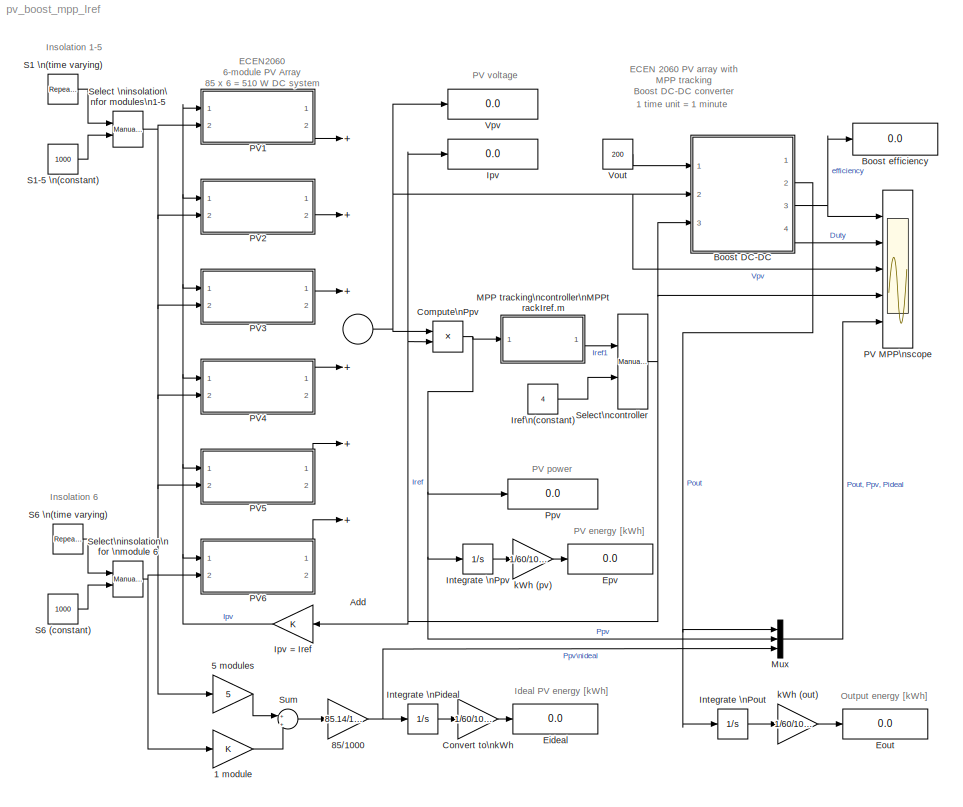
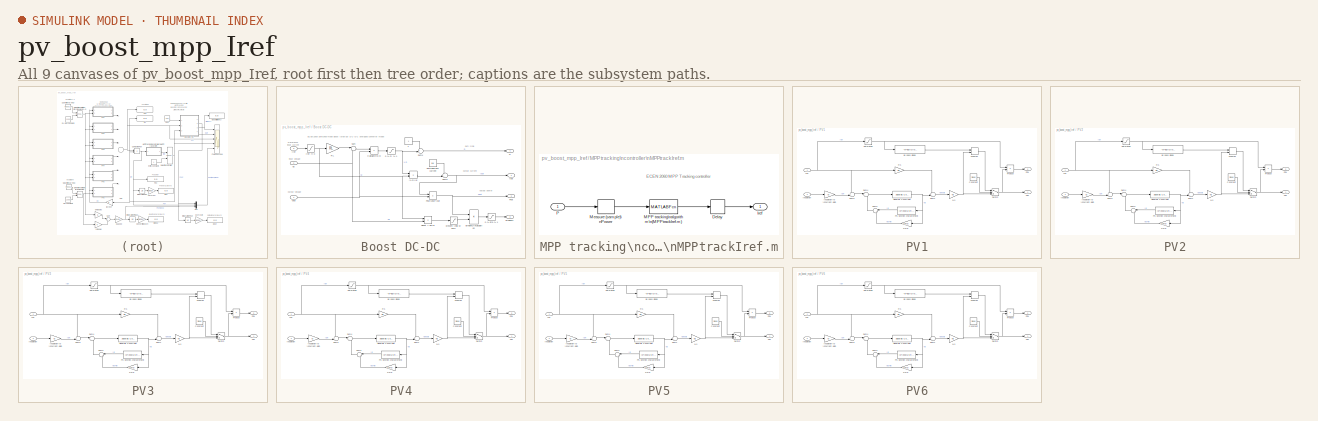
[diagram: thumbnail index - all 9 canvases of the model, root first then tree order]
MODEL pv_boost_mpp_Iref
KIND model
BLOCK [Gain] 1 module
  OutDataTypeMode = Inherit via internal rule
  ParameterDataTypeMode = Inherit via internal rule
  SaturateOnIntegerOverflow = off
BLOCK [Gain] 5 modules
  Gain = 5
  OutDataTypeMode = Inherit via internal rule
  ParameterDataTypeMode = Inherit via internal rule
  SaturateOnIntegerOverflow = off
BLOCK [Gain] 85//1000
  Gain = 85.14/1000
  OutDataTypeMode = Inherit via internal rule
  ParameterDataTypeMode = Inherit via internal rule
  SaturateOnIntegerOverflow = off
BLOCK [Sum] Add
  InputSameDT = off
  Inputs = ++++++
  OutDataTypeMode = Inherit via internal rule
  OutScaling = 2^-10
  Ports = [6, 1]
  SaturateOnIntegerOverflow = off
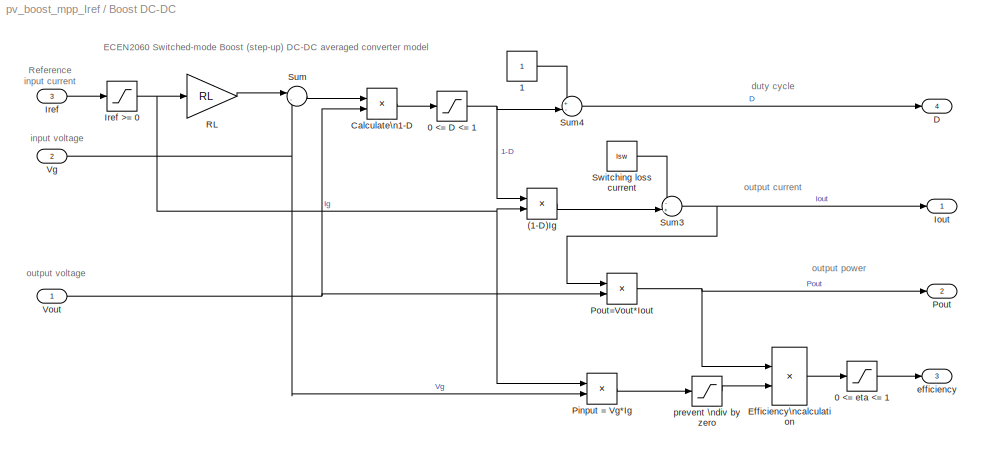
BLOCK [SubSystem] Boost DC-DC
  FunctionWithSeparateData = off
  MaskCallbackString = |
  MaskDescription = Averaged model of a boost (step-up) DC-DC converter with input current control. Model includes RL (conduction loss model) in series with the input port and Isw (model of switching and other loss) in parallel with the output port
  MaskDisplay = text(0.5,0.9,'Boost','horizontalAlignment', 'center');\ntext(0.5,0.8,'DC-DC','horizontalAlignment', 'center');\ntext(0.5,0.7,'(averaged)','horizontalAlignment', 'center');\ntext(0.5,0.6,'Iref control','horizontalAlignment', 'center');
  MaskEnableString = on,on
  MaskHideContents = off
  MaskIconFrame = on
  MaskIconOpaque = off
  MaskIconRotate = none
  MaskIconUnits = normalized
  MaskPromptString = Input port series resistance RL|Switching loss current Isw
  MaskStyleString = edit,edit
  MaskTabNameString = ,
  MaskToolTipString = on,on
  MaskTunableValueString = on,on
  MaskValueString = 0.5|0.03
  MaskVarAliasString = ,
  MaskVariables = RL=@1;Isw=@2;
  MaskVisibilityString = on,on
  MinAlgLoopOccurrences = off
  Ports = [3, 4]
  RTWSystemCode = Auto
BLOCK [Product] Boost DC-DC/(1-D)Ig
  InputSameDT = off
  Inputs = **
  OutDataTypeMode = Inherit via internal rule
  Ports = [2, 1]
  SaturateOnIntegerOverflow = off
BLOCK [Saturate] Boost DC-DC/0 <= D <= 1
  LowerLimit = 0
  UpperLimit = 1
BLOCK [Saturate] Boost DC-DC/0 <= eta <= 1
  LowerLimit = 0
  UpperLimit = 1
BLOCK [Constant] Boost DC-DC/1
  ConRadixGroup = Use specified scaling
  FramePeriod = inf
  OutDataType = sfix(16)
  OutDataTypeMode = Inherit from 'Constant value'
  OutScaling = 2^0
  SampleTime = inf
  SamplingMode = Sample based
  Value = 1
  VectorParams1D = on
BLOCK [Product] Boost DC-DC/Calculate\n1-D
  InputSameDT = off
  Inputs = */
  OutDataTypeMode = Inherit via internal rule
  Ports = [2, 1]
  SaturateOnIntegerOverflow = off
BLOCK [Outport] Boost DC-DC/D
  BusOutputAsStruct = off
  IconDisplay = Port number
  Port = 4
BLOCK [Product] Boost DC-DC/Efficiency\ncalculation
  InputSameDT = off
  Inputs = */
  OutDataTypeMode = Inherit via internal rule
  Ports = [2, 1]
  SaturateOnIntegerOverflow = off
BLOCK [Outport] Boost DC-DC/Iout
  BusOutputAsStruct = off
  IconDisplay = Port number
BLOCK [Inport] Boost DC-DC/Iref
  IconDisplay = Port number
  Port = 3
BLOCK [Saturate] Boost DC-DC/Iref >= 0
  LowerLimit = 0
  UpperLimit = inf
BLOCK [Product] Boost DC-DC/Pinput = Vg*Ig
  InputSameDT = off
  Inputs = **
  OutDataTypeMode = Inherit via internal rule
  Ports = [2, 1]
  SaturateOnIntegerOverflow = off
BLOCK [Outport] Boost DC-DC/Pout
  BusOutputAsStruct = off
  IconDisplay = Port number
  Port = 2
BLOCK [Product] Boost DC-DC/Pout=Vout*Iout
  InputSameDT = off
  Inputs = **
  OutDataTypeMode = Inherit via internal rule
  Ports = [2, 1]
  SaturateOnIntegerOverflow = off
BLOCK [Gain] Boost DC-DC/RL
  Gain = RL
  OutDataTypeMode = Inherit via internal rule
  ParameterDataTypeMode = Inherit via internal rule
  SaturateOnIntegerOverflow = off
BLOCK [Sum] Boost DC-DC/Sum
  IconShape = round
  InputSameDT = off
  Inputs = |-+
  OutDataTypeMode = Inherit via internal rule
  Ports = [2, 1]
  SaturateOnIntegerOverflow = off
BLOCK [Sum] Boost DC-DC/Sum3
  IconShape = round
  InputSameDT = off
  Inputs = -+|
  OutDataTypeMode = Inherit via internal rule
  Ports = [2, 1]
  SaturateOnIntegerOverflow = off
BLOCK [Sum] Boost DC-DC/Sum4
  IconShape = round
  InputSameDT = off
  Inputs = +-|
  OutDataTypeMode = Inherit via internal rule
  Ports = [2, 1]
  SaturateOnIntegerOverflow = off
BLOCK [Constant] Boost DC-DC/Switching loss current
  ConRadixGroup = Use specified scaling
  FramePeriod = inf
  OutDataType = sfix(16)
  OutDataTypeMode = Inherit from 'Constant value'
  OutScaling = 2^0
  SampleTime = inf
  SamplingMode = Sample based
  Value = Isw
  VectorParams1D = on
BLOCK [Inport] Boost DC-DC/Vg
  IconDisplay = Port number
  Port = 2
BLOCK [Inport] Boost DC-DC/Vout
  IconDisplay = Port number
BLOCK [Outport] Boost DC-DC/efficiency
  BusOutputAsStruct = off
  IconDisplay = Port number
  Port = 3
BLOCK [Saturate] Boost DC-DC/prevent \ndiv by zero
  LowerLimit = eps
  UpperLimit = inf
BLOCK [Display] Boost efficiency
  Decimation = 1
  Lockdown = off
  Ports = [1]
BLOCK [Product] Compute\nPpv
  InputSameDT = off
  OutDataTypeMode = Inherit via internal rule
  Ports = [2, 1]
  SaturateOnIntegerOverflow = off
BLOCK [Gain] Convert to\nkWh
  Gain = 1/60/1000
  OutDataTypeMode = Inherit via internal rule
  ParameterDataTypeMode = Inherit via internal rule
  SaturateOnIntegerOverflow = off
BLOCK [Display] Eideal
  Decimation = 1
  Lockdown = off
  Ports = [1]
BLOCK [Display] Eout
  Decimation = 1
  Lockdown = off
  Ports = [1]
BLOCK [Display] Epv
  Decimation = 1
  Lockdown = off
  Ports = [1]
BLOCK [Integrator] Integrate \nPideal
  IgnoreLimit = off
  Ports = [1, 1]
BLOCK [Integrator] Integrate \nPout
  IgnoreLimit = off
  Ports = [1, 1]
BLOCK [Integrator] Integrate \nPpv
  IgnoreLimit = off
  Ports = [1, 1]
BLOCK [Display] Ipv
  Decimation = 1
  Lockdown = off
  Ports = [1]
BLOCK [Gain] Ipv = Iref
  OutDataTypeMode = Inherit via internal rule
  ParameterDataTypeMode = Inherit via internal rule
  SaturateOnIntegerOverflow = off
BLOCK [Constant] Iref\n(constant)
  ConRadixGroup = Use specified scaling
  FramePeriod = inf
  OutDataType = sfix(16)
  OutDataTypeMode = Inherit from 'Constant value'
  OutScaling = 2^0
  SampleTime = inf
  SamplingMode = Sample based
  Value = 4
  VectorParams1D = on
BLOCK [SubSystem] MPP tracking\ncontroller\nMPPtrackIref.m
  FunctionWithSeparateData = off
  MaskDisplay = text(0.5,0.5,'MPPT','horizontalAlignment', 'center');
  MaskEnableString = on
  MaskHideContents = off
  MaskIconFrame = on
  MaskIconOpaque = off
  MaskIconRotate = none
  MaskIconUnits = normalized
  MaskInitialization = InitializeMPPtrackIref
  MaskPromptString = Sample interval
  MaskStyleString = edit
  MaskToolTipString = on
  MaskTunableValueString = on
  MaskValueString = 0.2
  MaskVariables = Tsample=@1;
  MaskVisibilityString = on
  MinAlgLoopOccurrences = off
  Ports = [1, 1]
  RTWSystemCode = Auto
BLOCK [TransportDelay] MPP tracking\ncontroller\nMPPtrackIref.m/Delay
  DelayTime = Tsample/2
BLOCK [Outport] MPP tracking\ncontroller\nMPPtrackIref.m/Iref
  BusOutputAsStruct = off
  IconDisplay = Port number
BLOCK [MATLABFcn] MPP tracking\ncontroller\nMPPtrackIref.m/MPP tracking\nalgorithm\n(MPPtrackIref.m)
  MATLABFcn = MPPtrackIref
BLOCK [ZeroOrderHold] MPP tracking\ncontroller\nMPPtrackIref.m/Measure (sample)\nPower
  SampleTime = Tsample
BLOCK [Inport] MPP tracking\ncontroller\nMPPtrackIref.m/P
  IconDisplay = Port number
BLOCK [Mux] Mux
  DisplayOption = bar
  Inputs = 3
  Ports = [3, 1]
BLOCK [Scope] PV MPP\nscope
  DataFormat = StructureWithTime
  Floating = off
  LimitDataPoints = off
  NumInputPorts = 5
  Ports = [5]
  SampleTime = 0
  SaveName = ScopeData1
  TimeRange = 500
  YMax = 1~1~150~6~1000
  YMin = 0~0.4~-50~0~-500
  ZoomMode = yonly
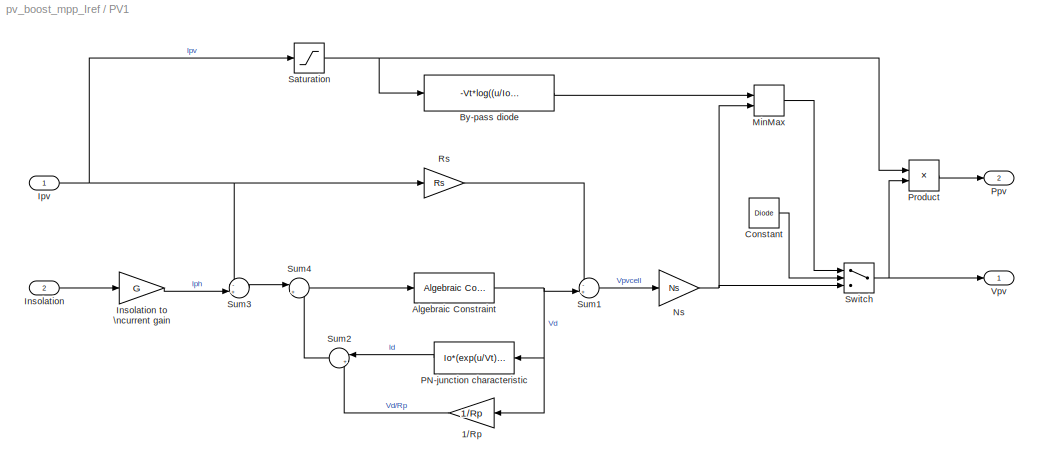
BLOCK [SubSystem] PV1
  FunctionWithSeparateData = off
  MaskCallbackString = ||||
  MaskDescription = PV module model based on module data-sheet parameters. This model has Ipv input, which is suitable for series connections. Limitations: no temperature dependance, static model
  MaskDisplay = plot([0.3 0.4],[0.4 0.8]);\nplot([0.4 0.5],[0.4 0.8]);\nplot([0.5 0.6],[0.4 0.8]);\nplot([0.6 0.7],[0.4 0.8]);\nplot([0.3 0.6],[0.4 0.4]);\nplot([0.325 0.625],[0.5 0.5]);\nplot([0.35 0.65],[0.6 0.6]);\nplot([0.375 0.675],[0.7 0.7]);\nplot([0.4 0.7],[0.8 0.8]);\ntext(0.5,0.9,'PV module (I)','horizontalAlignment', 'center');\n  <repeated x6 — deduplicated; at blocks: PV1, PV2, PV3, PV4, PV5, PV6>
  MaskEnableString = on,on,on,on,on
  MaskHideContents = off
  MaskIconFrame = on
  MaskIconOpaque = off
  MaskIconRotate = none
  MaskIconUnits = normalized
  MaskInitialization = % calculation of PV module parameters\n% limitation: constant temperature\nNs = round(Voc/0.61); % default number of cells in series\nVt = 26e-3; % thermal voltage\nG = Isc/1000; % irradiation to short-circuit current gain\nVmpc = Vr/Ns; % cell voltage at rated Pmax\nVocc = Voc/Ns; % cell open-circuit voltage\nRmpp = Vmpc/Ir; % cell load resistance at Pmax\n%\nRp = 100*Vocc/Isc; % initial value fo...<+575ch>  <repeated x6 — deduplicated; at blocks: PV1, PV2, PV3, PV4, PV5, PV6>
  MaskPromptString = Short-circuit current|Open-circuit voltage|Current at Pmax|Voltage at Pmax|By-pass diode?
  MaskStyleString = edit,edit,edit,edit,checkbox
  MaskTabNameString = ,,,,
  MaskToolTipString = on,on,on,on,on
  MaskTunableValueString = on,on,on,on,on
  MaskValueString = 5.45|22.2|4.95|17.2|on
  MaskVarAliasString = ,,,,
  MaskVariables = Isc=@1;Voc=@2;Ir=@3;Vr=@4;Diode=@5;
  MaskVisibilityString = on,on,on,on,on
  MinAlgLoopOccurrences = off
  Ports = [2, 2]
  RTWSystemCode = Auto
BLOCK [Gain] PV1/1//Rp
  Gain = 1/Rp
  OutDataTypeMode = Inherit via internal rule
  ParameterDataTypeMode = Inherit via internal rule
  SaturateOnIntegerOverflow = off
BLOCK [Reference] PV1/Algebraic Constraint  REF=simulink/Math\nOperations/Algebraic Constraint
  FunctionWithSeparateData = off
  Ports = [1, 1]
  RTWMemSecDataConstants = Inherit from model
  RTWMemSecDataInternal = Inherit from model
  RTWMemSecDataParameters = Inherit from model
  RTWMemSecFuncExecute = Inherit from model
  RTWMemSecFuncInitTerm = Inherit from model
  ShowPortLabels = on
  SourceBlock = simulink/Math\nOperations/Algebraic Constraint
  SourceType = Algebraic Constraint
  SystemSampleTime = -1
  z0 = 0
BLOCK [Fcn] PV1/By-pass diode
  Expr = -Vt*log((u/Io)+1)
BLOCK [Constant] PV1/Constant
  ConRadixGroup = Use specified scaling
  FramePeriod = inf
  OutDataType = sfix(16)
  OutDataTypeMode = Inherit from 'Constant value'
  OutScaling = 2^0
  SampleTime = inf
  SamplingMode = Sample based
  Value = Diode
  VectorParams1D = on
BLOCK [Inport] PV1/Insolation
  IconDisplay = Port number
  Port = 2
BLOCK [Gain] PV1/Insolation to \ncurrent gain
  Gain = G
  OutDataTypeMode = Inherit via internal rule
  ParameterDataTypeMode = Inherit via internal rule
  SaturateOnIntegerOverflow = off
BLOCK [Inport] PV1/Ipv
  IconDisplay = Port number
BLOCK [MinMax] PV1/MinMax
  Function = max
  InputSameDT = off
  Inputs = 2
  Ports = [2, 1]
  SaturateOnIntegerOverflow = off
BLOCK [Gain] PV1/Ns
  Gain = Ns
  OutDataTypeMode = Inherit via internal rule
  ParameterDataTypeMode = Inherit via internal rule
  SaturateOnIntegerOverflow = off
BLOCK [Fcn] PV1/PN-junction characteristic
  Expr = Io*(exp(u/Vt)-1)
BLOCK [Outport] PV1/Ppv
  BusOutputAsStruct = off
  IconDisplay = Port number
  Port = 2
BLOCK [Product] PV1/Product
  InputSameDT = off
  OutDataTypeMode = Inherit via internal rule
  Ports = [2, 1]
  SaturateOnIntegerOverflow = off
BLOCK [Gain] PV1/Rs
  Gain = Rs
  OutDataTypeMode = Inherit via internal rule
  ParameterDataTypeMode = Inherit via internal rule
  SaturateOnIntegerOverflow = off
BLOCK [Saturate] PV1/Saturation
  LowerLimit = 0
  UpperLimit = inf
BLOCK [Sum] PV1/Sum1
  IconShape = round
  InputSameDT = off
  Inputs = -+|
  OutDataTypeMode = Inherit via internal rule
  Ports = [2, 1]
  SaturateOnIntegerOverflow = off
BLOCK [Sum] PV1/Sum2
  IconShape = round
  InputSameDT = off
  Inputs = |++
  OutDataTypeMode = Inherit via internal rule
  Ports = [2, 1]
  SaturateOnIntegerOverflow = off
BLOCK [Sum] PV1/Sum3
  IconShape = round
  InputSameDT = off
  Inputs = -+|
  OutDataTypeMode = Inherit via internal rule
  Ports = [2, 1]
  SaturateOnIntegerOverflow = off
BLOCK [Sum] PV1/Sum4
  IconShape = round
  InputSameDT = off
  Inputs = |+-
  OutDataTypeMode = Inherit via internal rule
  Ports = [2, 1]
  SaturateOnIntegerOverflow = off
BLOCK [Switch] PV1/Switch
  Criteria = u2 > Threshold
  InputSameDT = off
  SaturateOnIntegerOverflow = off
BLOCK [Outport] PV1/Vpv
  BusOutputAsStruct = off
  IconDisplay = Port number
BLOCK [SubSystem] PV2
  FunctionWithSeparateData = off
  MaskCallbackString = ||||
  MaskDescription = PV module model based on module data-sheet parameters. This model has Ipv input, which is suitable for series connections. Limitations: no temperature dependance, static model
  MaskEnableString = on,on,on,on,on
  MaskHideContents = off
  MaskIconFrame = on
  MaskIconOpaque = off
  MaskIconRotate = none
  MaskIconUnits = normalized
  MaskPromptString = Short-circuit current|Open-circuit voltage|Current at Pmax|Voltage at Pmax|By-pass diode?
  MaskStyleString = edit,edit,edit,edit,checkbox
  MaskTabNameString = ,,,,
  MaskToolTipString = on,on,on,on,on
  MaskTunableValueString = on,on,on,on,on
  MaskValueString = 5.45|22.2|4.95|17.2|on
  MaskVarAliasString = ,,,,
  MaskVariables = Isc=@1;Voc=@2;Ir=@3;Vr=@4;Diode=@5;
  MaskVisibilityString = on,on,on,on,on
  MinAlgLoopOccurrences = off
  Ports = [2, 2]
  RTWSystemCode = Auto
BLOCK [Gain] PV2/1//Rp
  Gain = 1/Rp
  OutDataTypeMode = Inherit via internal rule
  ParameterDataTypeMode = Inherit via internal rule
  SaturateOnIntegerOverflow = off
BLOCK [Reference] PV2/Algebraic Constraint  REF=simulink/Math\nOperations/Algebraic Constraint
  FunctionWithSeparateData = off
  Ports = [1, 1]
  RTWMemSecDataConstants = Inherit from model
  RTWMemSecDataInternal = Inherit from model
  RTWMemSecDataParameters = Inherit from model
  RTWMemSecFuncExecute = Inherit from model
  RTWMemSecFuncInitTerm = Inherit from model
  ShowPortLabels = on
  SourceBlock = simulink/Math\nOperations/Algebraic Constraint
  SourceType = Algebraic Constraint
  SystemSampleTime = -1
  z0 = 0
BLOCK [Fcn] PV2/By-pass diode
  Expr = -Vt*log((u/Io)+1)
BLOCK [Constant] PV2/Constant
  ConRadixGroup = Use specified scaling
  FramePeriod = inf
  OutDataType = sfix(16)
  OutDataTypeMode = Inherit from 'Constant value'
  OutScaling = 2^0
  SampleTime = inf
  SamplingMode = Sample based
  Value = Diode
  VectorParams1D = on
BLOCK [Inport] PV2/Insolation
  IconDisplay = Port number
  Port = 2
BLOCK [Gain] PV2/Insolation to \ncurrent gain
  Gain = G
  OutDataTypeMode = Inherit via internal rule
  ParameterDataTypeMode = Inherit via internal rule
  SaturateOnIntegerOverflow = off
BLOCK [Inport] PV2/Ipv
  IconDisplay = Port number
BLOCK [MinMax] PV2/MinMax
  Function = max
  InputSameDT = off
  Inputs = 2
  Ports = [2, 1]
  SaturateOnIntegerOverflow = off
BLOCK [Gain] PV2/Ns
  Gain = Ns
  OutDataTypeMode = Inherit via internal rule
  ParameterDataTypeMode = Inherit via internal rule
  SaturateOnIntegerOverflow = off
BLOCK [Fcn] PV2/PN-junction characteristic
  Expr = Io*(exp(u/Vt)-1)
BLOCK [Outport] PV2/Ppv
  BusOutputAsStruct = off
  IconDisplay = Port number
  Port = 2
BLOCK [Product] PV2/Product
  InputSameDT = off
  OutDataTypeMode = Inherit via internal rule
  Ports = [2, 1]
  SaturateOnIntegerOverflow = off
BLOCK [Gain] PV2/Rs
  Gain = Rs
  OutDataTypeMode = Inherit via internal rule
  ParameterDataTypeMode = Inherit via internal rule
  SaturateOnIntegerOverflow = off
BLOCK [Saturate] PV2/Saturation
  LowerLimit = 0
  UpperLimit = inf
BLOCK [Sum] PV2/Sum1
  IconShape = round
  InputSameDT = off
  Inputs = -+|
  OutDataTypeMode = Inherit via internal rule
  Ports = [2, 1]
  SaturateOnIntegerOverflow = off
BLOCK [Sum] PV2/Sum2
  IconShape = round
  InputSameDT = off
  Inputs = |++
  OutDataTypeMode = Inherit via internal rule
  Ports = [2, 1]
  SaturateOnIntegerOverflow = off
BLOCK [Sum] PV2/Sum3
  IconShape = round
  InputSameDT = off
  Inputs = -+|
  OutDataTypeMode = Inherit via internal rule
  Ports = [2, 1]
  SaturateOnIntegerOverflow = off
BLOCK [Sum] PV2/Sum4
  IconShape = round
  InputSameDT = off
  Inputs = |+-
  OutDataTypeMode = Inherit via internal rule
  Ports = [2, 1]
  SaturateOnIntegerOverflow = off
BLOCK [Switch] PV2/Switch
  Criteria = u2 > Threshold
  InputSameDT = off
  SaturateOnIntegerOverflow = off
BLOCK [Outport] PV2/Vpv
  BusOutputAsStruct = off
  IconDisplay = Port number
BLOCK [SubSystem] PV3
  FunctionWithSeparateData = off
  MaskCallbackString = ||||
  MaskDescription = PV module model based on module data-sheet parameters. This model has Ipv input, which is suitable for series connections. Limitations: no temperature dependance, static model
  MaskEnableString = on,on,on,on,on
  MaskHideContents = off
  MaskIconFrame = on
  MaskIconOpaque = off
  MaskIconRotate = none
  MaskIconUnits = normalized
  MaskPromptString = Short-circuit current|Open-circuit voltage|Current at Pmax|Voltage at Pmax|By-pass diode?
  MaskStyleString = edit,edit,edit,edit,checkbox
  MaskTabNameString = ,,,,
  MaskToolTipString = on,on,on,on,on
  MaskTunableValueString = on,on,on,on,on
  MaskValueString = 5.45|22.2|4.95|17.2|on
  MaskVarAliasString = ,,,,
  MaskVariables = Isc=@1;Voc=@2;Ir=@3;Vr=@4;Diode=@5;
  MaskVisibilityString = on,on,on,on,on
  MinAlgLoopOccurrences = off
  Ports = [2, 2]
  RTWSystemCode = Auto
BLOCK [Gain] PV3/1//Rp
  Gain = 1/Rp
  OutDataTypeMode = Inherit via internal rule
  ParameterDataTypeMode = Inherit via internal rule
  SaturateOnIntegerOverflow = off
BLOCK [Reference] PV3/Algebraic Constraint  REF=simulink/Math\nOperations/Algebraic Constraint
  FunctionWithSeparateData = off
  Ports = [1, 1]
  RTWMemSecDataConstants = Inherit from model
  RTWMemSecDataInternal = Inherit from model
  RTWMemSecDataParameters = Inherit from model
  RTWMemSecFuncExecute = Inherit from model
  RTWMemSecFuncInitTerm = Inherit from model
  ShowPortLabels = on
  SourceBlock = simulink/Math\nOperations/Algebraic Constraint
  SourceType = Algebraic Constraint
  SystemSampleTime = -1
  z0 = 0
BLOCK [Fcn] PV3/By-pass diode
  Expr = -Vt*log((u/Io)+1)
BLOCK [Constant] PV3/Constant
  ConRadixGroup = Use specified scaling
  FramePeriod = inf
  OutDataType = sfix(16)
  OutDataTypeMode = Inherit from 'Constant value'
  OutScaling = 2^0
  SampleTime = inf
  SamplingMode = Sample based
  Value = Diode
  VectorParams1D = on
BLOCK [Inport] PV3/Insolation
  IconDisplay = Port number
  Port = 2
BLOCK [Gain] PV3/Insolation to \ncurrent gain
  Gain = G
  OutDataTypeMode = Inherit via internal rule
  ParameterDataTypeMode = Inherit via internal rule
  SaturateOnIntegerOverflow = off
BLOCK [Inport] PV3/Ipv
  IconDisplay = Port number
BLOCK [MinMax] PV3/MinMax
  Function = max
  InputSameDT = off
  Inputs = 2
  Ports = [2, 1]
  SaturateOnIntegerOverflow = off
BLOCK [Gain] PV3/Ns
  Gain = Ns
  OutDataTypeMode = Inherit via internal rule
  ParameterDataTypeMode = Inherit via internal rule
  SaturateOnIntegerOverflow = off
BLOCK [Fcn] PV3/PN-junction characteristic
  Expr = Io*(exp(u/Vt)-1)
BLOCK [Outport] PV3/Ppv
  BusOutputAsStruct = off
  IconDisplay = Port number
  Port = 2
BLOCK [Product] PV3/Product
  InputSameDT = off
  OutDataTypeMode = Inherit via internal rule
  Ports = [2, 1]
  SaturateOnIntegerOverflow = off
BLOCK [Gain] PV3/Rs
  Gain = Rs
  OutDataTypeMode = Inherit via internal rule
  ParameterDataTypeMode = Inherit via internal rule
  SaturateOnIntegerOverflow = off
BLOCK [Saturate] PV3/Saturation
  LowerLimit = 0
  UpperLimit = inf
BLOCK [Sum] PV3/Sum1
  IconShape = round
  InputSameDT = off
  Inputs = -+|
  OutDataTypeMode = Inherit via internal rule
  Ports = [2, 1]
  SaturateOnIntegerOverflow = off
BLOCK [Sum] PV3/Sum2
  IconShape = round
  InputSameDT = off
  Inputs = |++
  OutDataTypeMode = Inherit via internal rule
  Ports = [2, 1]
  SaturateOnIntegerOverflow = off
BLOCK [Sum] PV3/Sum3
  IconShape = round
  InputSameDT = off
  Inputs = -+|
  OutDataTypeMode = Inherit via internal rule
  Ports = [2, 1]
  SaturateOnIntegerOverflow = off
BLOCK [Sum] PV3/Sum4
  IconShape = round
  InputSameDT = off
  Inputs = |+-
  OutDataTypeMode = Inherit via internal rule
  Ports = [2, 1]
  SaturateOnIntegerOverflow = off
BLOCK [Switch] PV3/Switch
  Criteria = u2 > Threshold
  InputSameDT = off
  SaturateOnIntegerOverflow = off
BLOCK [Outport] PV3/Vpv
  BusOutputAsStruct = off
  IconDisplay = Port number
BLOCK [SubSystem] PV4
  FunctionWithSeparateData = off
  MaskCallbackString = ||||
  MaskDescription = PV module model based on module data-sheet parameters. This model has Ipv input, which is suitable for series connections. Limitations: no temperature dependance, static model
  MaskEnableString = on,on,on,on,on
  MaskHideContents = off
  MaskIconFrame = on
  MaskIconOpaque = off
  MaskIconRotate = none
  MaskIconUnits = normalized
  MaskPromptString = Short-circuit current|Open-circuit voltage|Current at Pmax|Voltage at Pmax|By-pass diode?
  MaskStyleString = edit,edit,edit,edit,checkbox
  MaskTabNameString = ,,,,
  MaskToolTipString = on,on,on,on,on
  MaskTunableValueString = on,on,on,on,on
  MaskValueString = 5.45|22.2|4.95|17.2|on
  MaskVarAliasString = ,,,,
  MaskVariables = Isc=@1;Voc=@2;Ir=@3;Vr=@4;Diode=@5;
  MaskVisibilityString = on,on,on,on,on
  MinAlgLoopOccurrences = off
  Ports = [2, 2]
  RTWSystemCode = Auto
BLOCK [Gain] PV4/1//Rp
  Gain = 1/Rp
  OutDataTypeMode = Inherit via internal rule
  ParameterDataTypeMode = Inherit via internal rule
  SaturateOnIntegerOverflow = off
BLOCK [Reference] PV4/Algebraic Constraint  REF=simulink/Math\nOperations/Algebraic Constraint
  FunctionWithSeparateData = off
  Ports = [1, 1]
  RTWMemSecDataConstants = Inherit from model
  RTWMemSecDataInternal = Inherit from model
  RTWMemSecDataParameters = Inherit from model
  RTWMemSecFuncExecute = Inherit from model
  RTWMemSecFuncInitTerm = Inherit from model
  ShowPortLabels = on
  SourceBlock = simulink/Math\nOperations/Algebraic Constraint
  SourceType = Algebraic Constraint
  SystemSampleTime = -1
  z0 = 0
BLOCK [Fcn] PV4/By-pass diode
  Expr = -Vt*log((u/Io)+1)
BLOCK [Constant] PV4/Constant
  ConRadixGroup = Use specified scaling
  FramePeriod = inf
  OutDataType = sfix(16)
  OutDataTypeMode = Inherit from 'Constant value'
  OutScaling = 2^0
  SampleTime = inf
  SamplingMode = Sample based
  Value = Diode
  VectorParams1D = on
BLOCK [Inport] PV4/Insolation
  IconDisplay = Port number
  Port = 2
BLOCK [Gain] PV4/Insolation to \ncurrent gain
  Gain = G
  OutDataTypeMode = Inherit via internal rule
  ParameterDataTypeMode = Inherit via internal rule
  SaturateOnIntegerOverflow = off
BLOCK [Inport] PV4/Ipv
  IconDisplay = Port number
BLOCK [MinMax] PV4/MinMax
  Function = max
  InputSameDT = off
  Inputs = 2
  Ports = [2, 1]
  SaturateOnIntegerOverflow = off
BLOCK [Gain] PV4/Ns
  Gain = Ns
  OutDataTypeMode = Inherit via internal rule
  ParameterDataTypeMode = Inherit via internal rule
  SaturateOnIntegerOverflow = off
BLOCK [Fcn] PV4/PN-junction characteristic
  Expr = Io*(exp(u/Vt)-1)
BLOCK [Outport] PV4/Ppv
  BusOutputAsStruct = off
  IconDisplay = Port number
  Port = 2
BLOCK [Product] PV4/Product
  InputSameDT = off
  OutDataTypeMode = Inherit via internal rule
  Ports = [2, 1]
  SaturateOnIntegerOverflow = off
BLOCK [Gain] PV4/Rs
  Gain = Rs
  OutDataTypeMode = Inherit via internal rule
  ParameterDataTypeMode = Inherit via internal rule
  SaturateOnIntegerOverflow = off
BLOCK [Saturate] PV4/Saturation
  LowerLimit = 0
  UpperLimit = inf
BLOCK [Sum] PV4/Sum1
  IconShape = round
  InputSameDT = off
  Inputs = -+|
  OutDataTypeMode = Inherit via internal rule
  Ports = [2, 1]
  SaturateOnIntegerOverflow = off
BLOCK [Sum] PV4/Sum2
  IconShape = round
  InputSameDT = off
  Inputs = |++
  OutDataTypeMode = Inherit via internal rule
  Ports = [2, 1]
  SaturateOnIntegerOverflow = off
BLOCK [Sum] PV4/Sum3
  IconShape = round
  InputSameDT = off
  Inputs = -+|
  OutDataTypeMode = Inherit via internal rule
  Ports = [2, 1]
  SaturateOnIntegerOverflow = off
BLOCK [Sum] PV4/Sum4
  IconShape = round
  InputSameDT = off
  Inputs = |+-
  OutDataTypeMode = Inherit via internal rule
  Ports = [2, 1]
  SaturateOnIntegerOverflow = off
BLOCK [Switch] PV4/Switch
  Criteria = u2 > Threshold
  InputSameDT = off
  SaturateOnIntegerOverflow = off
BLOCK [Outport] PV4/Vpv
  BusOutputAsStruct = off
  IconDisplay = Port number
BLOCK [SubSystem] PV5
  FunctionWithSeparateData = off
  MaskCallbackString = ||||
  MaskDescription = PV module model based on module data-sheet parameters. This model has Ipv input, which is suitable for series connections. Limitations: no temperature dependance, static model
  MaskEnableString = on,on,on,on,on
  MaskHideContents = off
  MaskIconFrame = on
  MaskIconOpaque = off
  MaskIconRotate = none
  MaskIconUnits = normalized
  MaskPromptString = Short-circuit current|Open-circuit voltage|Current at Pmax|Voltage at Pmax|By-pass diode?
  MaskStyleString = edit,edit,edit,edit,checkbox
  MaskTabNameString = ,,,,
  MaskToolTipString = on,on,on,on,on
  MaskTunableValueString = on,on,on,on,on
  MaskValueString = 5.45|22.2|4.95|17.2|on
  MaskVarAliasString = ,,,,
  MaskVariables = Isc=@1;Voc=@2;Ir=@3;Vr=@4;Diode=@5;
  MaskVisibilityString = on,on,on,on,on
  MinAlgLoopOccurrences = off
  Ports = [2, 2]
  RTWSystemCode = Auto
BLOCK [Gain] PV5/1//Rp
  Gain = 1/Rp
  OutDataTypeMode = Inherit via internal rule
  ParameterDataTypeMode = Inherit via internal rule
  SaturateOnIntegerOverflow = off
BLOCK [Reference] PV5/Algebraic Constraint  REF=simulink/Math\nOperations/Algebraic Constraint
  FunctionWithSeparateData = off
  Ports = [1, 1]
  RTWMemSecDataConstants = Inherit from model
  RTWMemSecDataInternal = Inherit from model
  RTWMemSecDataParameters = Inherit from model
  RTWMemSecFuncExecute = Inherit from model
  RTWMemSecFuncInitTerm = Inherit from model
  ShowPortLabels = on
  SourceBlock = simulink/Math\nOperations/Algebraic Constraint
  SourceType = Algebraic Constraint
  SystemSampleTime = -1
  z0 = 0
BLOCK [Fcn] PV5/By-pass diode
  Expr = -Vt*log((u/Io)+1)
BLOCK [Constant] PV5/Constant
  ConRadixGroup = Use specified scaling
  FramePeriod = inf
  OutDataType = sfix(16)
  OutDataTypeMode = Inherit from 'Constant value'
  OutScaling = 2^0
  SampleTime = inf
  SamplingMode = Sample based
  Value = Diode
  VectorParams1D = on
BLOCK [Inport] PV5/Insolation
  IconDisplay = Port number
  Port = 2
BLOCK [Gain] PV5/Insolation to \ncurrent gain
  Gain = G
  OutDataTypeMode = Inherit via internal rule
  ParameterDataTypeMode = Inherit via internal rule
  SaturateOnIntegerOverflow = off
BLOCK [Inport] PV5/Ipv
  IconDisplay = Port number
BLOCK [MinMax] PV5/MinMax
  Function = max
  InputSameDT = off
  Inputs = 2
  Ports = [2, 1]
  SaturateOnIntegerOverflow = off
BLOCK [Gain] PV5/Ns
  Gain = Ns
  OutDataTypeMode = Inherit via internal rule
  ParameterDataTypeMode = Inherit via internal rule
  SaturateOnIntegerOverflow = off
BLOCK [Fcn] PV5/PN-junction characteristic
  Expr = Io*(exp(u/Vt)-1)
BLOCK [Outport] PV5/Ppv
  BusOutputAsStruct = off
  IconDisplay = Port number
  Port = 2
BLOCK [Product] PV5/Product
  InputSameDT = off
  OutDataTypeMode = Inherit via internal rule
  Ports = [2, 1]
  SaturateOnIntegerOverflow = off
BLOCK [Gain] PV5/Rs
  Gain = Rs
  OutDataTypeMode = Inherit via internal rule
  ParameterDataTypeMode = Inherit via internal rule
  SaturateOnIntegerOverflow = off
BLOCK [Saturate] PV5/Saturation
  LowerLimit = 0
  UpperLimit = inf
BLOCK [Sum] PV5/Sum1
  IconShape = round
  InputSameDT = off
  Inputs = -+|
  OutDataTypeMode = Inherit via internal rule
  Ports = [2, 1]
  SaturateOnIntegerOverflow = off
BLOCK [Sum] PV5/Sum2
  IconShape = round
  InputSameDT = off
  Inputs = |++
  OutDataTypeMode = Inherit via internal rule
  Ports = [2, 1]
  SaturateOnIntegerOverflow = off
BLOCK [Sum] PV5/Sum3
  IconShape = round
  InputSameDT = off
  Inputs = -+|
  OutDataTypeMode = Inherit via internal rule
  Ports = [2, 1]
  SaturateOnIntegerOverflow = off
BLOCK [Sum] PV5/Sum4
  IconShape = round
  InputSameDT = off
  Inputs = |+-
  OutDataTypeMode = Inherit via internal rule
  Ports = [2, 1]
  SaturateOnIntegerOverflow = off
BLOCK [Switch] PV5/Switch
  Criteria = u2 > Threshold
  InputSameDT = off
  SaturateOnIntegerOverflow = off
BLOCK [Outport] PV5/Vpv
  BusOutputAsStruct = off
  IconDisplay = Port number
BLOCK [SubSystem] PV6
  FunctionWithSeparateData = off
  MaskCallbackString = ||||
  MaskDescription = PV module model based on module data-sheet parameters. This model has Ipv input, which is suitable for series connections. Limitations: no temperature dependance, static model
  MaskEnableString = on,on,on,on,on
  MaskHideContents = off
  MaskIconFrame = on
  MaskIconOpaque = off
  MaskIconRotate = none
  MaskIconUnits = normalized
  MaskPromptString = Short-circuit current|Open-circuit voltage|Current at Pmax|Voltage at Pmax|By-pass diode?
  MaskStyleString = edit,edit,edit,edit,checkbox
  MaskTabNameString = ,,,,
  MaskToolTipString = on,on,on,on,on
  MaskTunableValueString = on,on,on,on,on
  MaskValueString = 5.45|22.2|4.95|17.2|on
  MaskVarAliasString = ,,,,
  MaskVariables = Isc=@1;Voc=@2;Ir=@3;Vr=@4;Diode=@5;
  MaskVisibilityString = on,on,on,on,on
  MinAlgLoopOccurrences = off
  Ports = [2, 2]
  RTWSystemCode = Auto
BLOCK [Gain] PV6/1//Rp
  Gain = 1/Rp
  OutDataTypeMode = Inherit via internal rule
  ParameterDataTypeMode = Inherit via internal rule
  SaturateOnIntegerOverflow = off
BLOCK [Reference] PV6/Algebraic Constraint  REF=simulink/Math\nOperations/Algebraic Constraint
  FunctionWithSeparateData = off
  Ports = [1, 1]
  RTWMemSecDataConstants = Inherit from model
  RTWMemSecDataInternal = Inherit from model
  RTWMemSecDataParameters = Inherit from model
  RTWMemSecFuncExecute = Inherit from model
  RTWMemSecFuncInitTerm = Inherit from model
  ShowPortLabels = on
  SourceBlock = simulink/Math\nOperations/Algebraic Constraint
  SourceType = Algebraic Constraint
  SystemSampleTime = -1
  z0 = 0
BLOCK [Fcn] PV6/By-pass diode
  Expr = -Vt*log((u/Io)+1)
BLOCK [Constant] PV6/Constant
  ConRadixGroup = Use specified scaling
  FramePeriod = inf
  OutDataType = sfix(16)
  OutDataTypeMode = Inherit from 'Constant value'
  OutScaling = 2^0
  SampleTime = inf
  SamplingMode = Sample based
  Value = Diode
  VectorParams1D = on
BLOCK [Inport] PV6/Insolation
  IconDisplay = Port number
  Port = 2
BLOCK [Gain] PV6/Insolation to \ncurrent gain
  Gain = G
  OutDataTypeMode = Inherit via internal rule
  ParameterDataTypeMode = Inherit via internal rule
  SaturateOnIntegerOverflow = off
BLOCK [Inport] PV6/Ipv
  IconDisplay = Port number
BLOCK [MinMax] PV6/MinMax
  Function = max
  InputSameDT = off
  Inputs = 2
  Ports = [2, 1]
  SaturateOnIntegerOverflow = off
BLOCK [Gain] PV6/Ns
  Gain = Ns
  OutDataTypeMode = Inherit via internal rule
  ParameterDataTypeMode = Inherit via internal rule
  SaturateOnIntegerOverflow = off
BLOCK [Fcn] PV6/PN-junction characteristic
  Expr = Io*(exp(u/Vt)-1)
BLOCK [Outport] PV6/Ppv
  BusOutputAsStruct = off
  IconDisplay = Port number
  Port = 2
BLOCK [Product] PV6/Product
  InputSameDT = off
  OutDataTypeMode = Inherit via internal rule
  Ports = [2, 1]
  SaturateOnIntegerOverflow = off
BLOCK [Gain] PV6/Rs
  Gain = Rs
  OutDataTypeMode = Inherit via internal rule
  ParameterDataTypeMode = Inherit via internal rule
  SaturateOnIntegerOverflow = off
BLOCK [Saturate] PV6/Saturation
  LowerLimit = 0
  UpperLimit = inf
BLOCK [Sum] PV6/Sum1
  IconShape = round
  InputSameDT = off
  Inputs = -+|
  OutDataTypeMode = Inherit via internal rule
  Ports = [2, 1]
  SaturateOnIntegerOverflow = off
BLOCK [Sum] PV6/Sum2
  IconShape = round
  InputSameDT = off
  Inputs = |++
  OutDataTypeMode = Inherit via internal rule
  Ports = [2, 1]
  SaturateOnIntegerOverflow = off
BLOCK [Sum] PV6/Sum3
  IconShape = round
  InputSameDT = off
  Inputs = -+|
  OutDataTypeMode = Inherit via internal rule
  Ports = [2, 1]
  SaturateOnIntegerOverflow = off
BLOCK [Sum] PV6/Sum4
  IconShape = round
  InputSameDT = off
  Inputs = |+-
  OutDataTypeMode = Inherit via internal rule
  Ports = [2, 1]
  SaturateOnIntegerOverflow = off
BLOCK [Switch] PV6/Switch
  Criteria = u2 > Threshold
  InputSameDT = off
  SaturateOnIntegerOverflow = off
BLOCK [Outport] PV6/Vpv
  BusOutputAsStruct = off
  IconDisplay = Port number
BLOCK [Display] Ppv
  Decimation = 1
  Lockdown = off
  Ports = [1]
BLOCK [Reference] S1 \n(time varying)  REF=simulink/Sources/Repeating\nSequence
  FunctionWithSeparateData = off
  Ports = [0, 1]
  RTWMemSecDataConstants = Inherit from model
  RTWMemSecDataInternal = Inherit from model
  RTWMemSecDataParameters = Inherit from model
  RTWMemSecFuncExecute = Inherit from model
  RTWMemSecFuncInitTerm = Inherit from model
  ShowPortLabels = on
  SourceBlock = simulink/Sources/Repeating\nSequence
  SourceType = Repeating table
  SystemSampleTime = -1
  rep_seq_t = [0 1*60 2*60 3*60 4*60 5*60 6*60 7*60 8*60]
  rep_seq_y = [0 400 850 950 1000 950 850 400 0]
BLOCK [Constant] S1-5 \n(constant)
  ConRadixGroup = Use specified scaling
  FramePeriod = inf
  OutDataType = sfix(16)
  OutDataTypeMode = Inherit from 'Constant value'
  OutScaling = 2^0
  SampleTime = inf
  SamplingMode = Sample based
  Value = 1000
  VectorParams1D = on
BLOCK [Constant] S6 (constant)
  ConRadixGroup = Use specified scaling
  FramePeriod = inf
  OutDataType = sfix(16)
  OutDataTypeMode = Inherit from 'Constant value'
  OutScaling = 2^0
  SampleTime = inf
  SamplingMode = Sample based
  Value = 1000
  VectorParams1D = on
BLOCK [Reference] S6 \n(time varying)  REF=simulink/Sources/Repeating\nSequence
  FunctionWithSeparateData = off
  Ports = [0, 1]
  RTWMemSecDataConstants = Inherit from model
  RTWMemSecDataInternal = Inherit from model
  RTWMemSecDataParameters = Inherit from model
  RTWMemSecFuncExecute = Inherit from model
  RTWMemSecFuncInitTerm = Inherit from model
  ShowPortLabels = on
  SourceBlock = simulink/Sources/Repeating\nSequence
  SourceType = Repeating table
  SystemSampleTime = -1
  rep_seq_t = [0 1*60 2*60 3*60 4*60 5*60 6*60 7*60 8*60]
  rep_seq_y = [0 400 850 950 0 950 850 400 0]
BLOCK [Reference] Select \ninsolation\nfor modules\n1-5  REF=simulink/Signal\nRouting/Manual Switch
  FunctionWithSeparateData = off
  Ports = [2, 1]
  RTWMemSecDataConstants = Inherit from model
  RTWMemSecDataInternal = Inherit from model
  RTWMemSecDataParameters = Inherit from model
  RTWMemSecFuncExecute = Inherit from model
  RTWMemSecFuncInitTerm = Inherit from model
  ShowPortLabels = on
  SourceBlock = simulink/Signal\nRouting/Manual Switch
  SourceType = Manual Switch
  SystemSampleTime = -1
  action = 0
  sw = 0
BLOCK [Reference] Select\ncontroller  REF=simulink/Signal\nRouting/Manual Switch
  FunctionWithSeparateData = off
  Ports = [2, 1]
  RTWMemSecDataConstants = Inherit from model
  RTWMemSecDataInternal = Inherit from model
  RTWMemSecDataParameters = Inherit from model
  RTWMemSecFuncExecute = Inherit from model
  RTWMemSecFuncInitTerm = Inherit from model
  ShowPortLabels = on
  SourceBlock = simulink/Signal\nRouting/Manual Switch
  SourceType = Manual Switch
  SystemSampleTime = -1
  action = 0
  sw = 1
BLOCK [Reference] Select\ninsolation\nfor \nmodule 6  REF=simulink/Signal\nRouting/Manual Switch
  FunctionWithSeparateData = off
  Ports = [2, 1]
  RTWMemSecDataConstants = Inherit from model
  RTWMemSecDataInternal = Inherit from model
  RTWMemSecDataParameters = Inherit from model
  RTWMemSecFuncExecute = Inherit from model
  RTWMemSecFuncInitTerm = Inherit from model
  ShowPortLabels = on
  SourceBlock = simulink/Signal\nRouting/Manual Switch
  SourceType = Manual Switch
  SystemSampleTime = -1
  action = 0
  sw = 0
BLOCK [Sum] Sum
  IconShape = round
  InputSameDT = off
  Inputs = +|+
  OutDataTypeMode = Inherit via internal rule
  Ports = [2, 1]
  SaturateOnIntegerOverflow = off
BLOCK [Constant] Vout
  ConRadixGroup = Use specified scaling
  FramePeriod = inf
  OutDataType = sfix(16)
  OutDataTypeMode = Inherit from 'Constant value'
  OutScaling = 2^0
  SampleTime = inf
  SamplingMode = Sample based
  Value = 200
  VectorParams1D = on
BLOCK [Display] Vpv
  Decimation = 1
  Lockdown = off
  Ports = [1]
BLOCK [Gain] kWh (out)
  Gain = 1/60/1000
  OutDataTypeMode = Inherit via internal rule
  ParameterDataTypeMode = Inherit via internal rule
  SaturateOnIntegerOverflow = off
BLOCK [Gain] kWh (pv)
  Gain = 1/60/1000
  OutDataTypeMode = Inherit via internal rule
  ParameterDataTypeMode = Inherit via internal rule
  SaturateOnIntegerOverflow = off
ANNOTATION (root): 1 time unit = 1 minute
ANNOTATION (root): ECEN 2060 PV array with\nMPP tracking \nBoost DC-DC converter
ANNOTATION (root): ECEN2060\n6-module PV Array\n85 x 6 = 510 W DC system
ANNOTATION (root): Ideal PV energy [kWh]
ANNOTATION (root): Insolation 1-5
ANNOTATION (root): Insolation 6
ANNOTATION (root): Output energy [kWh]
ANNOTATION (root): PV energy [kWh]
ANNOTATION (root): PV power
ANNOTATION (root): PV voltage
ANNOTATION Boost DC-DC: ECEN2060 Switched-mode Boost (step-up) DC-DC averaged converter model
ANNOTATION Boost DC-DC: Reference\ninput current
ANNOTATION Boost DC-DC: duty cycle
ANNOTATION Boost DC-DC: input voltage
ANNOTATION Boost DC-DC: output current
ANNOTATION Boost DC-DC: output power
ANNOTATION Boost DC-DC: output voltage
ANNOTATION MPP tracking\ncontroller\nMPPtrackIref.m: ECEN 2060 MPP Tracking controller
LINE 1 module:1 -> Sum:2
LINE 5 modules:1 -> Sum:1
NET 85//1000:1 -> Integrate \nPideal:1, Mux:3
NET Add:1 -> Boost DC-DC:2, Compute\nPpv:1, PV MPP\nscope:3, Vpv:1
LINE Boost DC-DC/(1-D)Ig:1 -> Boost DC-DC/Sum3:2
NET Boost DC-DC/0 <= D <= 1:1 -> Boost DC-DC/(1-D)Ig:1, Boost DC-DC/Sum4:2
LINE Boost DC-DC/0 <= eta <= 1:1 -> Boost DC-DC/efficiency:1
LINE Boost DC-DC/1:1 -> Boost DC-DC/Sum4:1
LINE Boost DC-DC/Calculate\n1-D:1 -> Boost DC-DC/0 <= D <= 1:1
LINE Boost DC-DC/Efficiency\ncalculation:1 -> Boost DC-DC/0 <= eta <= 1:1
NET Boost DC-DC/Iref >= 0:1 -> Boost DC-DC/(1-D)Ig:2, Boost DC-DC/Pinput = Vg*Ig:1, Boost DC-DC/RL:1
LINE Boost DC-DC/Iref:1 -> Boost DC-DC/Iref >= 0:1
LINE Boost DC-DC/Pinput = Vg*Ig:1 -> Boost DC-DC/prevent \ndiv by zero:1
NET Boost DC-DC/Pout=Vout*Iout:1 -> Boost DC-DC/Efficiency\ncalculation:1, Boost DC-DC/Pout:1
LINE Boost DC-DC/RL:1 -> Boost DC-DC/Sum:1
NET Boost DC-DC/Sum3:1 -> Boost DC-DC/Iout:1, Boost DC-DC/Pout=Vout*Iout:1
LINE Boost DC-DC/Sum4:1 -> Boost DC-DC/D:1
LINE Boost DC-DC/Sum:1 -> Boost DC-DC/Calculate\n1-D:1
LINE Boost DC-DC/Switching loss current:1 -> Boost DC-DC/Sum3:1
NET Boost DC-DC/Vg:1 -> Boost DC-DC/Pinput = Vg*Ig:2, Boost DC-DC/Sum:2
NET Boost DC-DC/Vout:1 -> Boost DC-DC/Calculate\n1-D:2, Boost DC-DC/Pout=Vout*Iout:2
LINE Boost DC-DC/prevent \ndiv by zero:1 -> Boost DC-DC/Efficiency\ncalculation:2
NET Boost DC-DC:2 -> Integrate \nPout:1, Mux:1
NET Boost DC-DC:3 -> Boost efficiency:1, PV MPP\nscope:1
LINE Boost DC-DC:4 -> PV MPP\nscope:2
NET Compute\nPpv:1 -> Integrate \nPpv:1, MPP tracking\ncontroller\nMPPtrackIref.m:1, Mux:2, Ppv:1
LINE Convert to\nkWh:1 -> Eideal:1
LINE Integrate \nPideal:1 -> Convert to\nkWh:1
LINE Integrate \nPout:1 -> kWh (out):1
LINE Integrate \nPpv:1 -> kWh (pv):1
NET Ipv = Iref:1 -> PV1:1, PV2:1, PV3:1, PV4:1, PV5:1, PV6:1
LINE Iref\n(constant):1 -> Select\ncontroller:2
LINE MPP tracking\ncontroller\nMPPtrackIref.m/Delay:1 -> MPP tracking\ncontroller\nMPPtrackIref.m/Iref:1
LINE MPP tracking\ncontroller\nMPPtrackIref.m/MPP tracking\nalgorithm\n(MPPtrackIref.m):1 -> MPP tracking\ncontroller\nMPPtrackIref.m/Delay:1
LINE MPP tracking\ncontroller\nMPPtrackIref.m/Measure (sample)\nPower:1 -> MPP tracking\ncontroller\nMPPtrackIref.m/MPP tracking\nalgorithm\n(MPPtrackIref.m):1
LINE MPP tracking\ncontroller\nMPPtrackIref.m/P:1 -> MPP tracking\ncontroller\nMPPtrackIref.m/Measure (sample)\nPower:1
LINE MPP tracking\ncontroller\nMPPtrackIref.m:1 -> Select\ncontroller:1
LINE Mux:1 -> PV MPP\nscope:5
LINE PV1/1//Rp:1 -> PV1/Sum2:2
NET PV1/Algebraic Constraint:1 -> PV1/1//Rp:1, PV1/PN-junction characteristic:1, PV1/Sum1:2
LINE PV1/By-pass diode:1 -> PV1/MinMax:1
LINE PV1/Constant:1 -> PV1/Switch:2
LINE PV1/Insolation to \ncurrent gain:1 -> PV1/Sum3:2
LINE PV1/Insolation:1 -> PV1/Insolation to \ncurrent gain:1
NET PV1/Ipv:1 -> PV1/Rs:1, PV1/Saturation:1, PV1/Sum3:1
LINE PV1/MinMax:1 -> PV1/Switch:1
NET PV1/Ns:1 -> PV1/MinMax:2, PV1/Switch:3
LINE PV1/PN-junction characteristic:1 -> PV1/Sum2:1
LINE PV1/Product:1 -> PV1/Ppv:1
LINE PV1/Rs:1 -> PV1/Sum1:1
NET PV1/Saturation:1 -> PV1/By-pass diode:1, PV1/Product:1
LINE PV1/Sum1:1 -> PV1/Ns:1
LINE PV1/Sum2:1 -> PV1/Sum4:2
LINE PV1/Sum3:1 -> PV1/Sum4:1
LINE PV1/Sum4:1 -> PV1/Algebraic Constraint:1
NET PV1/Switch:1 -> PV1/Product:2, PV1/Vpv:1
LINE PV1:1 -> Add:1
LINE PV2/1//Rp:1 -> PV2/Sum2:2
NET PV2/Algebraic Constraint:1 -> PV2/1//Rp:1, PV2/PN-junction characteristic:1, PV2/Sum1:2
LINE PV2/By-pass diode:1 -> PV2/MinMax:1
LINE PV2/Constant:1 -> PV2/Switch:2
LINE PV2/Insolation to \ncurrent gain:1 -> PV2/Sum3:2
LINE PV2/Insolation:1 -> PV2/Insolation to \ncurrent gain:1
NET PV2/Ipv:1 -> PV2/Rs:1, PV2/Saturation:1, PV2/Sum3:1
LINE PV2/MinMax:1 -> PV2/Switch:1
NET PV2/Ns:1 -> PV2/MinMax:2, PV2/Switch:3
LINE PV2/PN-junction characteristic:1 -> PV2/Sum2:1
LINE PV2/Product:1 -> PV2/Ppv:1
LINE PV2/Rs:1 -> PV2/Sum1:1
NET PV2/Saturation:1 -> PV2/By-pass diode:1, PV2/Product:1
LINE PV2/Sum1:1 -> PV2/Ns:1
LINE PV2/Sum2:1 -> PV2/Sum4:2
LINE PV2/Sum3:1 -> PV2/Sum4:1
LINE PV2/Sum4:1 -> PV2/Algebraic Constraint:1
NET PV2/Switch:1 -> PV2/Product:2, PV2/Vpv:1
LINE PV2:1 -> Add:2
LINE PV3/1//Rp:1 -> PV3/Sum2:2
NET PV3/Algebraic Constraint:1 -> PV3/1//Rp:1, PV3/PN-junction characteristic:1, PV3/Sum1:2
LINE PV3/By-pass diode:1 -> PV3/MinMax:1
LINE PV3/Constant:1 -> PV3/Switch:2
LINE PV3/Insolation to \ncurrent gain:1 -> PV3/Sum3:2
LINE PV3/Insolation:1 -> PV3/Insolation to \ncurrent gain:1
NET PV3/Ipv:1 -> PV3/Rs:1, PV3/Saturation:1, PV3/Sum3:1
LINE PV3/MinMax:1 -> PV3/Switch:1
NET PV3/Ns:1 -> PV3/MinMax:2, PV3/Switch:3
LINE PV3/PN-junction characteristic:1 -> PV3/Sum2:1
LINE PV3/Product:1 -> PV3/Ppv:1
LINE PV3/Rs:1 -> PV3/Sum1:1
NET PV3/Saturation:1 -> PV3/By-pass diode:1, PV3/Product:1
LINE PV3/Sum1:1 -> PV3/Ns:1
LINE PV3/Sum2:1 -> PV3/Sum4:2
LINE PV3/Sum3:1 -> PV3/Sum4:1
LINE PV3/Sum4:1 -> PV3/Algebraic Constraint:1
NET PV3/Switch:1 -> PV3/Product:2, PV3/Vpv:1
LINE PV3:1 -> Add:3
LINE PV4/1//Rp:1 -> PV4/Sum2:2
NET PV4/Algebraic Constraint:1 -> PV4/1//Rp:1, PV4/PN-junction characteristic:1, PV4/Sum1:2
LINE PV4/By-pass diode:1 -> PV4/MinMax:1
LINE PV4/Constant:1 -> PV4/Switch:2
LINE PV4/Insolation to \ncurrent gain:1 -> PV4/Sum3:2
LINE PV4/Insolation:1 -> PV4/Insolation to \ncurrent gain:1
NET PV4/Ipv:1 -> PV4/Rs:1, PV4/Saturation:1, PV4/Sum3:1
LINE PV4/MinMax:1 -> PV4/Switch:1
NET PV4/Ns:1 -> PV4/MinMax:2, PV4/Switch:3
LINE PV4/PN-junction characteristic:1 -> PV4/Sum2:1
LINE PV4/Product:1 -> PV4/Ppv:1
LINE PV4/Rs:1 -> PV4/Sum1:1
NET PV4/Saturation:1 -> PV4/By-pass diode:1, PV4/Product:1
LINE PV4/Sum1:1 -> PV4/Ns:1
LINE PV4/Sum2:1 -> PV4/Sum4:2
LINE PV4/Sum3:1 -> PV4/Sum4:1
LINE PV4/Sum4:1 -> PV4/Algebraic Constraint:1
NET PV4/Switch:1 -> PV4/Product:2, PV4/Vpv:1
LINE PV4:1 -> Add:4
LINE PV5/1//Rp:1 -> PV5/Sum2:2
NET PV5/Algebraic Constraint:1 -> PV5/1//Rp:1, PV5/PN-junction characteristic:1, PV5/Sum1:2
LINE PV5/By-pass diode:1 -> PV5/MinMax:1
LINE PV5/Constant:1 -> PV5/Switch:2
LINE PV5/Insolation to \ncurrent gain:1 -> PV5/Sum3:2
LINE PV5/Insolation:1 -> PV5/Insolation to \ncurrent gain:1
NET PV5/Ipv:1 -> PV5/Rs:1, PV5/Saturation:1, PV5/Sum3:1
LINE PV5/MinMax:1 -> PV5/Switch:1
NET PV5/Ns:1 -> PV5/MinMax:2, PV5/Switch:3
LINE PV5/PN-junction characteristic:1 -> PV5/Sum2:1
LINE PV5/Product:1 -> PV5/Ppv:1
LINE PV5/Rs:1 -> PV5/Sum1:1
NET PV5/Saturation:1 -> PV5/By-pass diode:1, PV5/Product:1
LINE PV5/Sum1:1 -> PV5/Ns:1
LINE PV5/Sum2:1 -> PV5/Sum4:2
LINE PV5/Sum3:1 -> PV5/Sum4:1
LINE PV5/Sum4:1 -> PV5/Algebraic Constraint:1
NET PV5/Switch:1 -> PV5/Product:2, PV5/Vpv:1
LINE PV5:1 -> Add:5
LINE PV6/1//Rp:1 -> PV6/Sum2:2
NET PV6/Algebraic Constraint:1 -> PV6/1//Rp:1, PV6/PN-junction characteristic:1, PV6/Sum1:2
LINE PV6/By-pass diode:1 -> PV6/MinMax:1
LINE PV6/Constant:1 -> PV6/Switch:2
LINE PV6/Insolation to \ncurrent gain:1 -> PV6/Sum3:2
LINE PV6/Insolation:1 -> PV6/Insolation to \ncurrent gain:1
NET PV6/Ipv:1 -> PV6/Rs:1, PV6/Saturation:1, PV6/Sum3:1
LINE PV6/MinMax:1 -> PV6/Switch:1
NET PV6/Ns:1 -> PV6/MinMax:2, PV6/Switch:3
LINE PV6/PN-junction characteristic:1 -> PV6/Sum2:1
LINE PV6/Product:1 -> PV6/Ppv:1
LINE PV6/Rs:1 -> PV6/Sum1:1
NET PV6/Saturation:1 -> PV6/By-pass diode:1, PV6/Product:1
LINE PV6/Sum1:1 -> PV6/Ns:1
LINE PV6/Sum2:1 -> PV6/Sum4:2
LINE PV6/Sum3:1 -> PV6/Sum4:1
LINE PV6/Sum4:1 -> PV6/Algebraic Constraint:1
NET PV6/Switch:1 -> PV6/Product:2, PV6/Vpv:1
LINE PV6:1 -> Add:6
LINE S1 \n(time varying):1 -> Select \ninsolation\nfor modules\n1-5:1
LINE S1-5 \n(constant):1 -> Select \ninsolation\nfor modules\n1-5:2
LINE S6 (constant):1 -> Select\ninsolation\nfor \nmodule 6:2
LINE S6 \n(time varying):1 -> Select\ninsolation\nfor \nmodule 6:1
NET Select \ninsolation\nfor modules\n1-5:1 -> 5 modules:1, PV1:2, PV2:2, PV3:2, PV4:2, PV5:2
NET Select\ncontroller:1 -> Boost DC-DC:3, Compute\nPpv:2, Ipv = Iref:1, Ipv:1, PV MPP\nscope:4
NET Select\ninsolation\nfor \nmodule 6:1 -> 1 module:1, PV6:2
LINE Sum:1 -> 85//1000:1
LINE Vout:1 -> Boost DC-DC:1
LINE kWh (out):1 -> Eout:1
LINE kWh (pv):1 -> Epv:1
note: NET lines group one-source signal fan-out (src -> all destinations, sorted); 1:1 wires keep LINE
